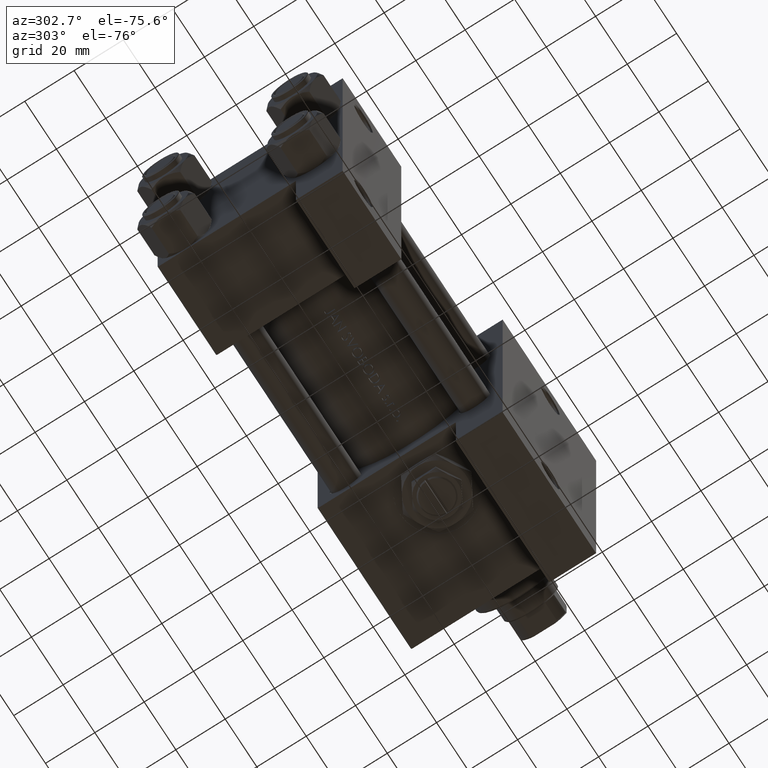
[diagram: clean part render]
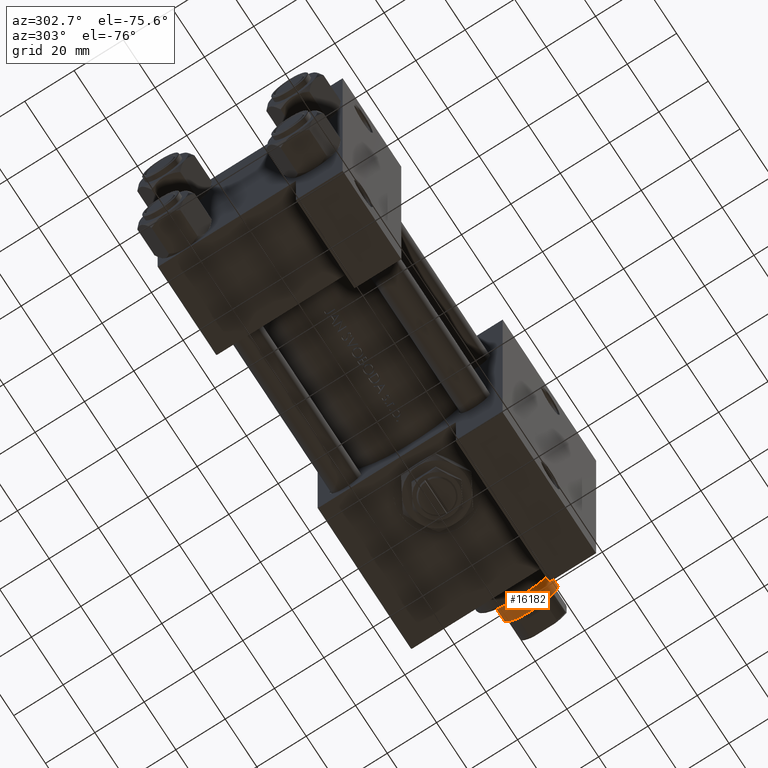
[diagram: same view with one face highlighted and labeled with its STEP entity id]
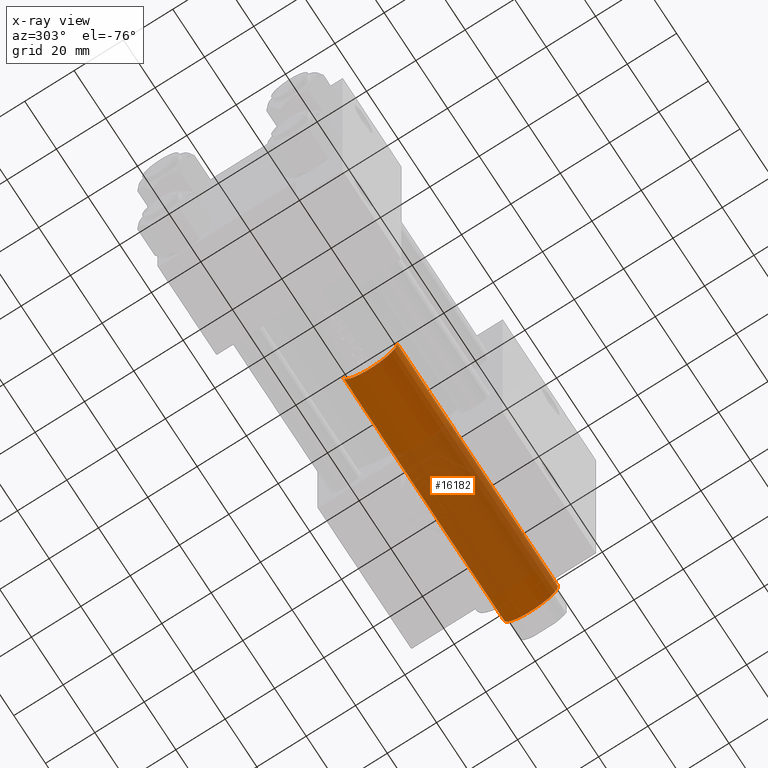
[diagram: x-ray of the same camera — body ghosted, the highlighted face saturated]
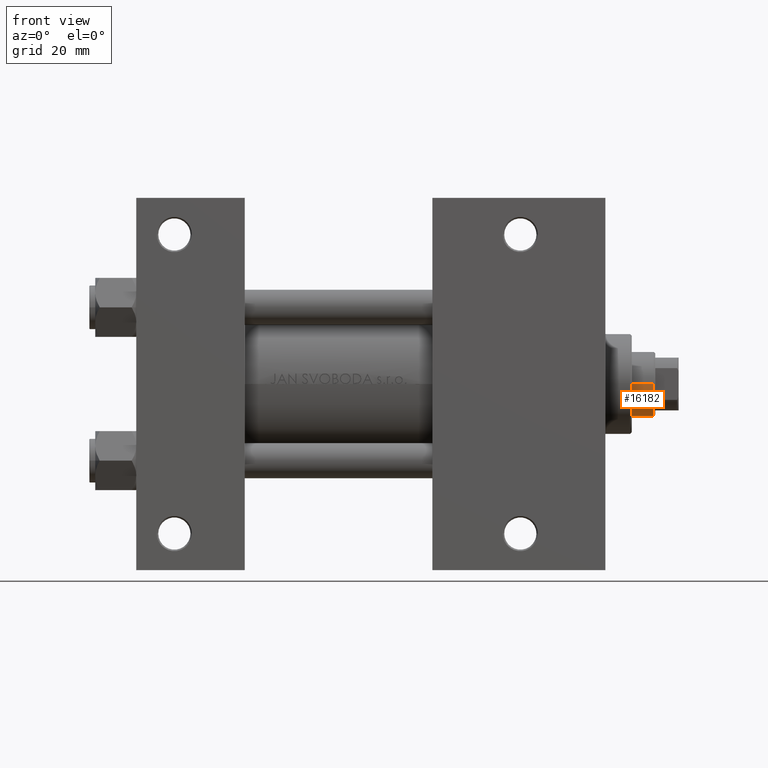
[diagram: same view with one face highlighted and labeled with its STEP entity id]
A machine part, auxiliary view. The second image highlights one B-rep face of the part: STEP entity #16182.
The next image is the same camera in x-ray: the body ghosted, the highlighted face saturated — about 59% of this face is hidden behind the body in this view.
A second angle (front view) of the same face is appended — the face is thin or edge-on in the first view.
In plain terms, the highlighted cylindrical surface (edge-blend (fillet) strip) has radius 11 mm, axis along (-1, 0, 0).
Its self-contained STEP definition (entity closure, byte-faithful):
#993 = EDGE_CURVE ( 'NONE', #46150, #3768, #40134, .T. ) ;
#3768 = VERTEX_POINT ( 'NONE', #28663 ) ;
#4329 = DIRECTION ( 'NONE',  ( 1.000000000000000000, 0.000000000000000000, 0.000000000000000000 ) ) ;
#5067 = ORIENTED_EDGE ( 'NONE', *, *, #993, .T. ) ;
#6336 = VECTOR ( 'NONE', #24718, 1000.000000000000000 ) ;
#7448 = CYLINDRICAL_SURFACE ( 'NONE', #25983, 11.00000000000000000 ) ;
#8567 = VERTEX_POINT ( 'NONE', #36193 ) ;
#9885 = EDGE_CURVE ( 'NONE', #10116, #46150, #48637, .T. ) ;
#10116 = VERTEX_POINT ( 'NONE', #37146 ) ;
#11882 = ORIENTED_EDGE ( 'NONE', *, *, #19719, .F. ) ;
#16182 = ADVANCED_FACE ( 'NONE', ( #18131 ), #7448, .T. ) ;
#17197 = CARTESIAN_POINT ( 'NONE',  ( -11.00000000000000000, 0.000000000000000000, 139.9999999999999716 ) ) ;
#18131 = FACE_OUTER_BOUND ( 'NONE', #27877, .T. ) ;
#19719 = EDGE_CURVE ( 'NONE', #10116, #8567, #24444, .T. ) ;
#21680 = DIRECTION ( 'NONE',  ( -0.000000000000000000, -0.000000000000000000, -1.000000000000000000 ) ) ;
#24118 = DIRECTION ( 'NONE',  ( 0.000000000000000000, 0.000000000000000000, 1.000000000000000000 ) ) ;
#24444 = LINE ( 'NONE', #17197, #33277 ) ;
#24718 = DIRECTION ( 'NONE',  ( -0.000000000000000000, -0.000000000000000000, -1.000000000000000000 ) ) ;
#25983 = AXIS2_PLACEMENT_3D ( 'NONE', #33830, #49019, #45545 ) ;
#27877 = EDGE_LOOP ( 'NONE', ( #28200, #5067, #38929, #11882 ) ) ;
#28200 = ORIENTED_EDGE ( 'NONE', *, *, #9885, .T. ) ;
#28663 = CARTESIAN_POINT ( 'NONE',  ( 11.00000000000000000, 1.347111479062088405E-15, 38.00000000000000000 ) ) ;
#31767 = CIRCLE ( 'NONE', #41315, 11.00000000000000000 ) ;
#33277 = VECTOR ( 'NONE', #21680, 1000.000000000000000 ) ;
#33830 = CARTESIAN_POINT ( 'NONE',  ( 0.000000000000000000, 0.000000000000000000, 139.9999999999999716 ) ) ;
#34693 = DIRECTION ( 'NONE',  ( 0.000000000000000000, 0.000000000000000000, -1.000000000000000000 ) ) ;
#35546 = DIRECTION ( 'NONE',  ( 1.000000000000000000, 0.000000000000000000, 0.000000000000000000 ) ) ;
#36193 = CARTESIAN_POINT ( 'NONE',  ( -11.00000000000000000, 0.000000000000000000, 38.00000000000000000 ) ) ;
#36897 = CARTESIAN_POINT ( 'NONE',  ( 11.00000000000000000, 1.347111479062088405E-15, 139.9999999999999716 ) ) ;
#37146 = CARTESIAN_POINT ( 'NONE',  ( -11.00000000000000000, 0.000000000000000000, 139.4999999999999716 ) ) ;
#38929 = ORIENTED_EDGE ( 'NONE', *, *, #41460, .T. ) ;
#40134 = LINE ( 'NONE', #36897, #6336 ) ;
#41315 = AXIS2_PLACEMENT_3D ( 'NONE', #43026, #24118, #35546 ) ;
#41460 = EDGE_CURVE ( 'NONE', #3768, #8567, #31767, .T. ) ;
#43026 = CARTESIAN_POINT ( 'NONE',  ( 0.000000000000000000, 0.000000000000000000, 38.00000000000000000 ) ) ;
#45545 = DIRECTION ( 'NONE',  ( -1.000000000000000000, 0.000000000000000000, 0.000000000000000000 ) ) ;
#46150 = VERTEX_POINT ( 'NONE', #47406 ) ;
#46261 = AXIS2_PLACEMENT_3D ( 'NONE', #48396, #34693, #4329 ) ;
#47406 = CARTESIAN_POINT ( 'NONE',  ( 11.00000000000000000, 1.347111479062088405E-15, 139.4999999999999716 ) ) ;
#48396 = CARTESIAN_POINT ( 'NONE',  ( 0.000000000000000000, 0.000000000000000000, 139.4999999999999716 ) ) ;
#48637 = CIRCLE ( 'NONE', #46261, 11.00000000000000000 ) ;
#49019 = DIRECTION ( 'NONE',  ( -0.000000000000000000, -0.000000000000000000, -1.000000000000000000 ) ) ;